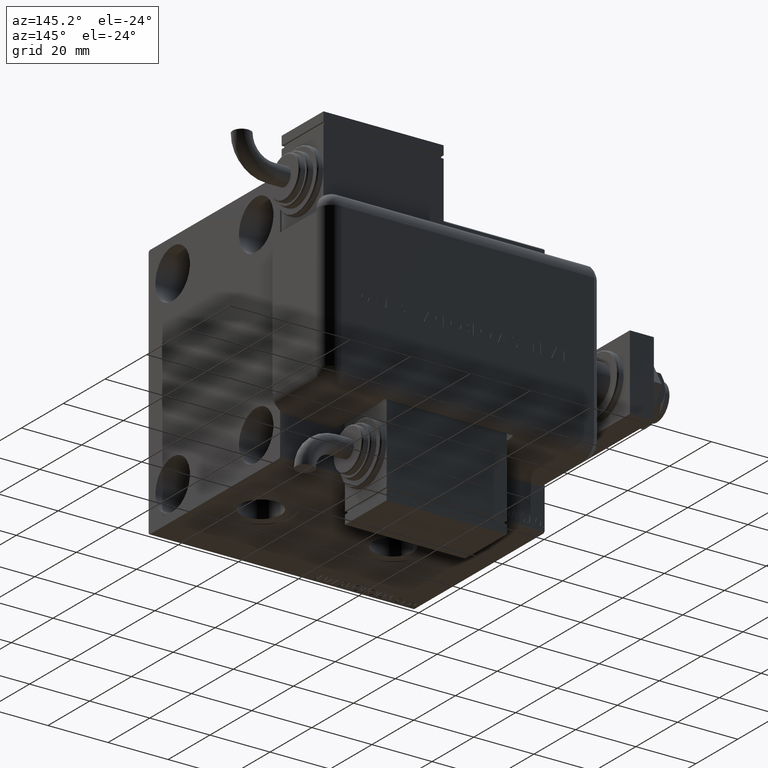
[diagram: clean part render]
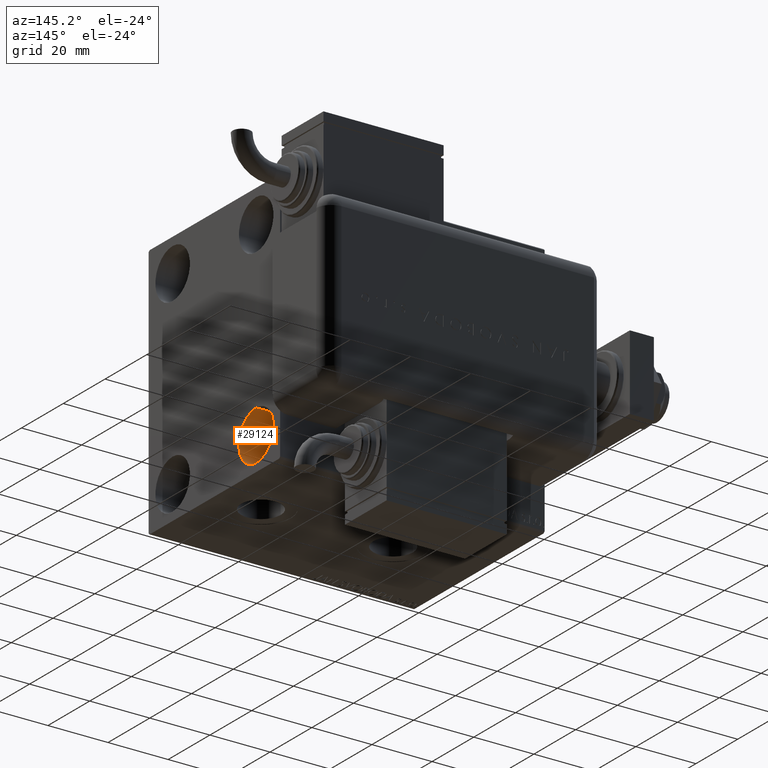
[diagram: same view with one face highlighted and labeled with its STEP entity id]
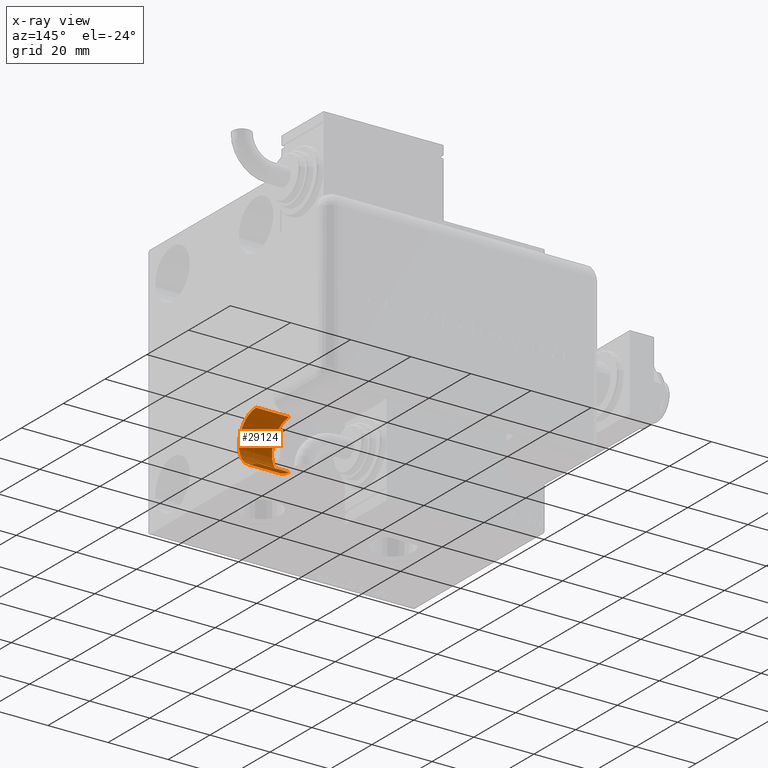
[diagram: x-ray of the same camera — body ghosted, the highlighted face saturated]
A machine part, auxiliary view. The second image highlights one B-rep face of the part: STEP entity #29124.
The next image is the same camera in x-ray: the body ghosted, the highlighted face saturated — about 0% of this face is hidden behind the body in this view.
In plain terms, the highlighted cylindrical surface (edge-blend (fillet) strip) has radius 8.25 mm, axis along (1, 0, 0).
Its self-contained STEP definition (entity closure, byte-faithful):
#3571 = CARTESIAN_POINT ( 'NONE',  ( 88.00000000000000000, 19.99999999999999645, -39.74999999999999289 ) ) ;
#5480 = AXIS2_PLACEMENT_3D ( 'NONE', #20336, #47208, #24557 ) ;
#5806 = FACE_OUTER_BOUND ( 'NONE', #35575, .T. ) ;
#6501 = VERTEX_POINT ( 'NONE', #56299 ) ;
#6708 = CARTESIAN_POINT ( 'NONE',  ( 77.00000000000000000, 19.99999999999999645, -31.49999999999999289 ) ) ;
#6988 = EDGE_CURVE ( 'NONE', #52979, #6501, #57060, .T. ) ;
#11048 = ORIENTED_EDGE ( 'NONE', *, *, #6988, .T. ) ;
#11555 = CYLINDRICAL_SURFACE ( 'NONE', #25454, 8.250000000000000000 ) ;
#13104 = AXIS2_PLACEMENT_3D ( 'NONE', #52414, #28861, #41870 ) ;
#15314 = VERTEX_POINT ( 'NONE', #58718 ) ;
#16574 = DIRECTION ( 'NONE',  ( 1.000000000000000000, -0.000000000000000000, -0.000000000000000000 ) ) ;
#16644 = CARTESIAN_POINT ( 'NONE',  ( 77.00000000000000000, 19.99999999999999645, -23.24999999999999289 ) ) ;
#17386 = DIRECTION ( 'NONE',  ( 1.000000000000000000, -0.000000000000000000, -0.000000000000000000 ) ) ;
#19021 = CIRCLE ( 'NONE', #5480, 8.250000000000000000 ) ;
#20336 = CARTESIAN_POINT ( 'NONE',  ( 77.00000000000000000, 19.99999999999999645, -31.49999999999999289 ) ) ;
#21103 = ORIENTED_EDGE ( 'NONE', *, *, #45510, .F. ) ;
#21780 = CIRCLE ( 'NONE', #13104, 8.250000000000000000 ) ;
#24557 = DIRECTION ( 'NONE',  ( 0.000000000000000000, 0.000000000000000000, 1.000000000000000000 ) ) ;
#25454 = AXIS2_PLACEMENT_3D ( 'NONE', #6708, #33323, #57483 ) ;
#27036 = ORIENTED_EDGE ( 'NONE', *, *, #33815, .F. ) ;
#28861 = DIRECTION ( 'NONE',  ( -1.000000000000000000, -0.000000000000000000, -0.000000000000000000 ) ) ;
#29124 = ADVANCED_FACE ( 'NONE', ( #5806 ), #11555, .F. ) ;
#33323 = DIRECTION ( 'NONE',  ( 1.000000000000000000, -0.000000000000000000, -0.000000000000000000 ) ) ;
#33815 = EDGE_CURVE ( 'NONE', #58076, #6501, #21780, .T. ) ;
#35575 = EDGE_LOOP ( 'NONE', ( #49140, #11048, #27036, #21103 ) ) ;
#41870 = DIRECTION ( 'NONE',  ( 0.000000000000000000, 0.000000000000000000, 1.000000000000000000 ) ) ;
#45510 = EDGE_CURVE ( 'NONE', #15314, #58076, #58460, .T. ) ;
#47208 = DIRECTION ( 'NONE',  ( -1.000000000000000000, -0.000000000000000000, -0.000000000000000000 ) ) ;
#47329 = VECTOR ( 'NONE', #16574, 1000.000000000000000 ) ;
#47690 = CARTESIAN_POINT ( 'NONE',  ( 77.00000000000000000, 19.99999999999999645, -23.24999999999999289 ) ) ;
#49140 = ORIENTED_EDGE ( 'NONE', *, *, #58506, .T. ) ;
#51979 = VECTOR ( 'NONE', #17386, 1000.000000000000000 ) ;
#52414 = CARTESIAN_POINT ( 'NONE',  ( 88.00000000000000000, 19.99999999999999645, -31.49999999999999289 ) ) ;
#52979 = VERTEX_POINT ( 'NONE', #16644 ) ;
#56299 = CARTESIAN_POINT ( 'NONE',  ( 88.00000000000000000, 19.99999999999999645, -23.24999999999999289 ) ) ;
#57060 = LINE ( 'NONE', #47690, #47329 ) ;
#57483 = DIRECTION ( 'NONE',  ( 0.000000000000000000, 0.000000000000000000, -1.000000000000000000 ) ) ;
#58076 = VERTEX_POINT ( 'NONE', #3571 ) ;
#58460 = LINE ( 'NONE', #58758, #51979 ) ;
#58506 = EDGE_CURVE ( 'NONE', #15314, #52979, #19021, .T. ) ;
#58718 = CARTESIAN_POINT ( 'NONE',  ( 77.00000000000000000, 19.99999999999999645, -39.74999999999999289 ) ) ;
#58758 = CARTESIAN_POINT ( 'NONE',  ( 77.00000000000000000, 19.99999999999999645, -39.74999999999999289 ) ) ;